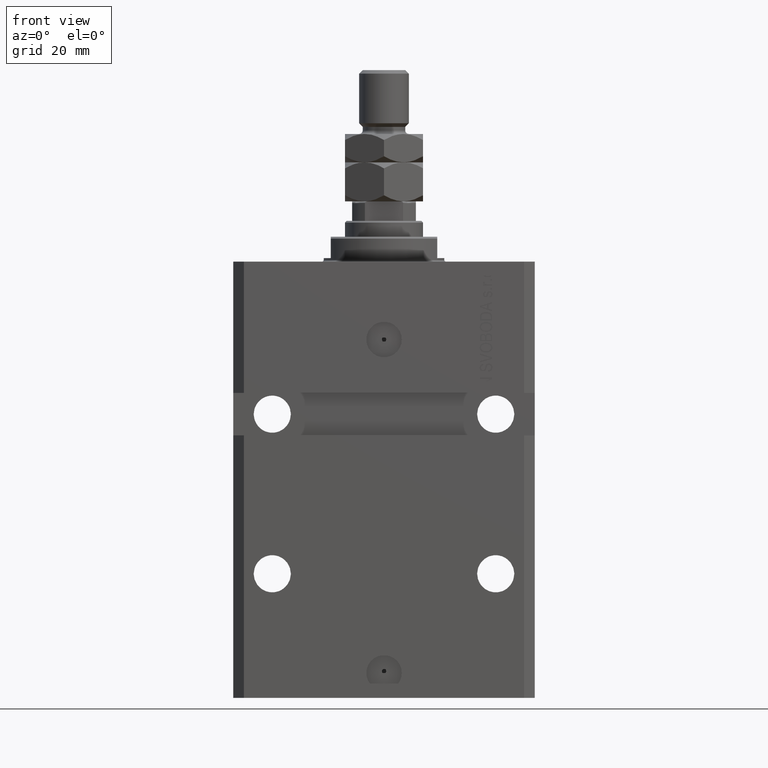
[diagram: clean part render]
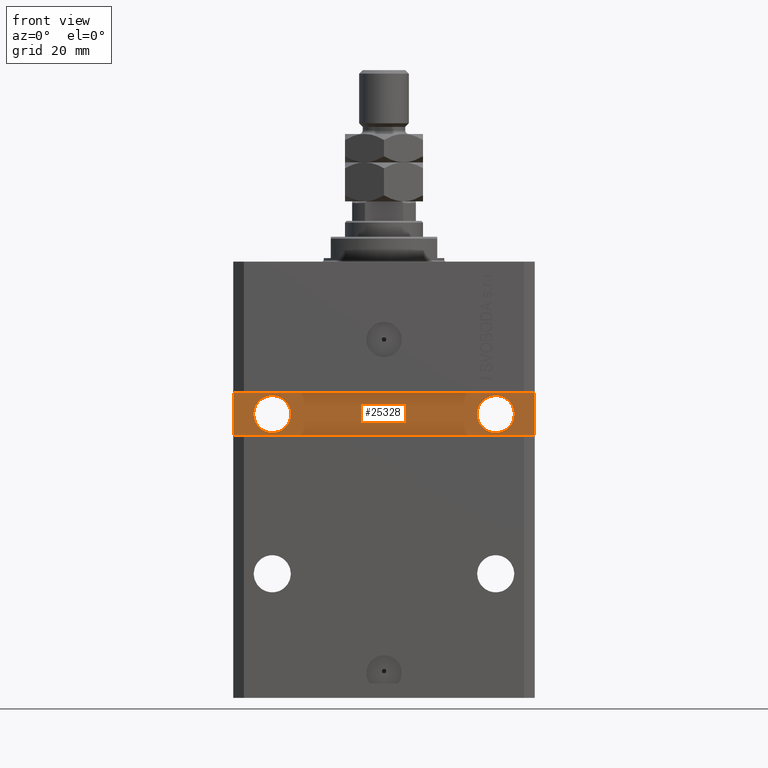
[diagram: same view with one face highlighted and labeled with its STEP entity id]
A machine part, front view. The second image highlights one B-rep face of the part: STEP entity #25328.
In plain terms, the highlighted planar face has unit normal (0, -1, 0).
Its self-contained STEP definition (entity closure, byte-faithful):
#535 = VECTOR ( 'NONE', #25974, 1000.000000000000000 ) ;
#547 = CARTESIAN_POINT ( 'NONE',  ( 42.50000000000001421, -28.49999999999999289, -37.00000000000000000 ) ) ;
#961 = CARTESIAN_POINT ( 'NONE',  ( -42.50000000000000000, -28.50000000000000711, -48.99999999999999289 ) ) ;
#1582 = ORIENTED_EDGE ( 'NONE', *, *, #41228, .T. ) ;
#2373 = EDGE_LOOP ( 'NONE', ( #38110, #35784 ) ) ;
#2508 = EDGE_CURVE ( 'NONE', #41755, #42829, #44126, .T. ) ;
#2736 = DIRECTION ( 'NONE',  ( 0.000000000000000000, 0.000000000000000000, -1.000000000000000000 ) ) ;
#3048 = DIRECTION ( 'NONE',  ( 1.037025423586453699E-16, -1.000000000000000000, 1.848892746611746419E-32 ) ) ;
#3290 = EDGE_CURVE ( 'NONE', #12396, #8246, #36537, .T. ) ;
#6428 = EDGE_LOOP ( 'NONE', ( #18816, #26485 ) ) ;
#6922 = CARTESIAN_POINT ( 'NONE',  ( -26.24999999999998934, -28.50000000000000355, -43.00000000000000000 ) ) ;
#7405 = LINE ( 'NONE', #961, #37381 ) ;
#8113 = DIRECTION ( 'NONE',  ( 1.000000000000000000, 1.632680918566406300E-16, 1.632680918566406300E-16 ) ) ;
#8246 = VERTEX_POINT ( 'NONE', #6922 ) ;
#8737 = CARTESIAN_POINT ( 'NONE',  ( 4.790119779726142858E-15, -28.50000000000000000, 0.000000000000000000 ) ) ;
#8782 = EDGE_CURVE ( 'NONE', #8246, #12396, #23833, .T. ) ;
#10512 = EDGE_CURVE ( 'NONE', #35487, #24113, #20103, .T. ) ;
#11728 = CARTESIAN_POINT ( 'NONE',  ( -42.50000000000000000, -28.50000000000000711, -48.99999999999999289 ) ) ;
#11837 = PLANE ( 'NONE',  #42647 ) ;
#12396 = VERTEX_POINT ( 'NONE', #34053 ) ;
#12523 = LINE ( 'NONE', #23911, #40224 ) ;
#13703 = CARTESIAN_POINT ( 'NONE',  ( -31.49999999999998579, -28.50000000000000355, -43.00000000000000000 ) ) ;
#14795 = EDGE_CURVE ( 'NONE', #42829, #41755, #32265, .T. ) ;
#15864 = FACE_BOUND ( 'NONE', #2373, .T. ) ;
#16894 = EDGE_CURVE ( 'NONE', #34543, #41412, #12523, .T. ) ;
#18737 = DIRECTION ( 'NONE',  ( 1.632680918566406300E-16, -1.000000000000000000, 0.000000000000000000 ) ) ;
#18816 = ORIENTED_EDGE ( 'NONE', *, *, #8782, .F. ) ;
#19658 = CARTESIAN_POINT ( 'NONE',  ( -31.49999999999998579, -28.50000000000000355, -43.00000000000000000 ) ) ;
#19891 = DIRECTION ( 'NONE',  ( 1.101411730780568590E-16, -1.000000000000000000, 0.000000000000000000 ) ) ;
#20027 = CARTESIAN_POINT ( 'NONE',  ( 26.25000000000001776, -28.49999999999999645, -43.00000000000000000 ) ) ;
#20103 = LINE ( 'NONE', #35038, #45774 ) ;
#20335 = DIRECTION ( 'NONE',  ( 0.000000000000000000, 0.000000000000000000, 1.000000000000000000 ) ) ;
#21344 = DIRECTION ( 'NONE',  ( 1.000000000000000000, 0.000000000000000000, 0.000000000000000000 ) ) ;
#22992 = FACE_BOUND ( 'NONE', #6428, .T. ) ;
#23578 = EDGE_CURVE ( 'NONE', #24113, #34543, #7405, .T. ) ;
#23621 = ORIENTED_EDGE ( 'NONE', *, *, #16894, .T. ) ;
#23833 = CIRCLE ( 'NONE', #36714, 5.249999999999997335 ) ;
#23911 = CARTESIAN_POINT ( 'NONE',  ( 42.50000000000001421, -28.49999999999999289, -48.99999999999997868 ) ) ;
#24113 = VERTEX_POINT ( 'NONE', #11728 ) ;
#25328 = ADVANCED_FACE ( 'NONE', ( #15864, #22992, #25845 ), #11837, .T. ) ;
#25503 = CARTESIAN_POINT ( 'NONE',  ( 31.50000000000001421, -28.49999999999999645, -43.00000000000000000 ) ) ;
#25577 = EDGE_LOOP ( 'NONE', ( #40362, #23621, #1582, #39762 ) ) ;
#25845 = FACE_OUTER_BOUND ( 'NONE', #25577, .T. ) ;
#25974 = DIRECTION ( 'NONE',  ( -1.000000000000000000, -1.632680918566406300E-16, -8.163404592832031500E-17 ) ) ;
#26485 = ORIENTED_EDGE ( 'NONE', *, *, #3290, .F. ) ;
#27249 = DIRECTION ( 'NONE',  ( 1.000000000000000000, 0.000000000000000000, 0.000000000000000000 ) ) ;
#29523 = DIRECTION ( 'NONE',  ( 1.000000000000000000, 0.000000000000000000, 0.000000000000000000 ) ) ;
#30003 = AXIS2_PLACEMENT_3D ( 'NONE', #39869, #3048, #21344 ) ;
#31632 = CARTESIAN_POINT ( 'NONE',  ( 42.50000000000001421, -28.49999999999999289, -37.00000000000000000 ) ) ;
#31747 = CARTESIAN_POINT ( 'NONE',  ( 36.75000000000001421, -28.49999999999999645, -43.00000000000000000 ) ) ;
#31984 = DIRECTION ( 'NONE',  ( 1.101411730780568590E-16, -1.000000000000000000, 0.000000000000000000 ) ) ;
#32265 = CIRCLE ( 'NONE', #30003, 5.249999999999997335 ) ;
#32786 = CARTESIAN_POINT ( 'NONE',  ( -42.50000000000000000, -28.50000000000000711, -37.00000000000000711 ) ) ;
#34053 = CARTESIAN_POINT ( 'NONE',  ( -36.74999999999998579, -28.50000000000000355, -43.00000000000000000 ) ) ;
#34543 = VERTEX_POINT ( 'NONE', #43933 ) ;
#35038 = CARTESIAN_POINT ( 'NONE',  ( -42.50000000000000000, -28.50000000000000711, -37.00000000000000711 ) ) ;
#35041 = AXIS2_PLACEMENT_3D ( 'NONE', #19658, #19891, #27249 ) ;
#35487 = VERTEX_POINT ( 'NONE', #32786 ) ;
#35784 = ORIENTED_EDGE ( 'NONE', *, *, #14795, .F. ) ;
#36410 = DIRECTION ( 'NONE',  ( 1.037025423586453699E-16, -1.000000000000000000, 1.848892746611746419E-32 ) ) ;
#36483 = DIRECTION ( 'NONE',  ( 1.000000000000000000, 0.000000000000000000, 0.000000000000000000 ) ) ;
#36537 = CIRCLE ( 'NONE', #35041, 5.249999999999997335 ) ;
#36714 = AXIS2_PLACEMENT_3D ( 'NONE', #13703, #31984, #36483 ) ;
#36777 = DIRECTION ( 'NONE',  ( 1.000000000000000000, 1.632680918566406300E-16, 0.000000000000000000 ) ) ;
#37381 = VECTOR ( 'NONE', #8113, 1000.000000000000000 ) ;
#38110 = ORIENTED_EDGE ( 'NONE', *, *, #2508, .F. ) ;
#39762 = ORIENTED_EDGE ( 'NONE', *, *, #10512, .T. ) ;
#39869 = CARTESIAN_POINT ( 'NONE',  ( 31.50000000000001421, -28.49999999999999645, -43.00000000000000000 ) ) ;
#40224 = VECTOR ( 'NONE', #20335, 1000.000000000000000 ) ;
#40362 = ORIENTED_EDGE ( 'NONE', *, *, #23578, .T. ) ;
#41228 = EDGE_CURVE ( 'NONE', #41412, #35487, #46634, .T. ) ;
#41412 = VERTEX_POINT ( 'NONE', #31632 ) ;
#41755 = VERTEX_POINT ( 'NONE', #31747 ) ;
#42598 = AXIS2_PLACEMENT_3D ( 'NONE', #25503, #36410, #29523 ) ;
#42647 = AXIS2_PLACEMENT_3D ( 'NONE', #8737, #18737, #36777 ) ;
#42829 = VERTEX_POINT ( 'NONE', #20027 ) ;
#43933 = CARTESIAN_POINT ( 'NONE',  ( 42.50000000000001421, -28.49999999999999289, -48.99999999999997868 ) ) ;
#44126 = CIRCLE ( 'NONE', #42598, 5.249999999999997335 ) ;
#45774 = VECTOR ( 'NONE', #2736, 1000.000000000000000 ) ;
#46634 = LINE ( 'NONE', #547, #535 ) ;